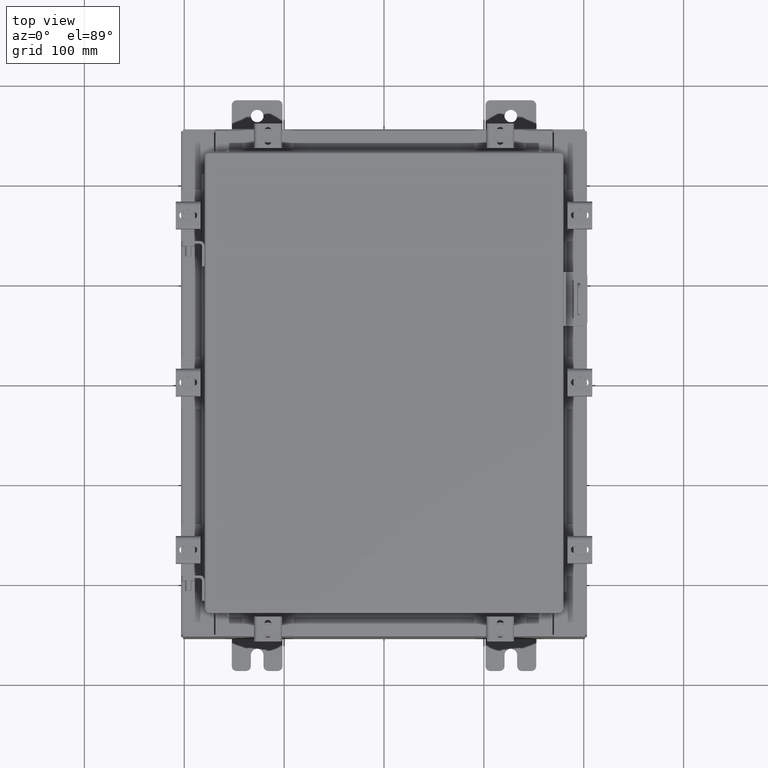
[diagram: clean part render]
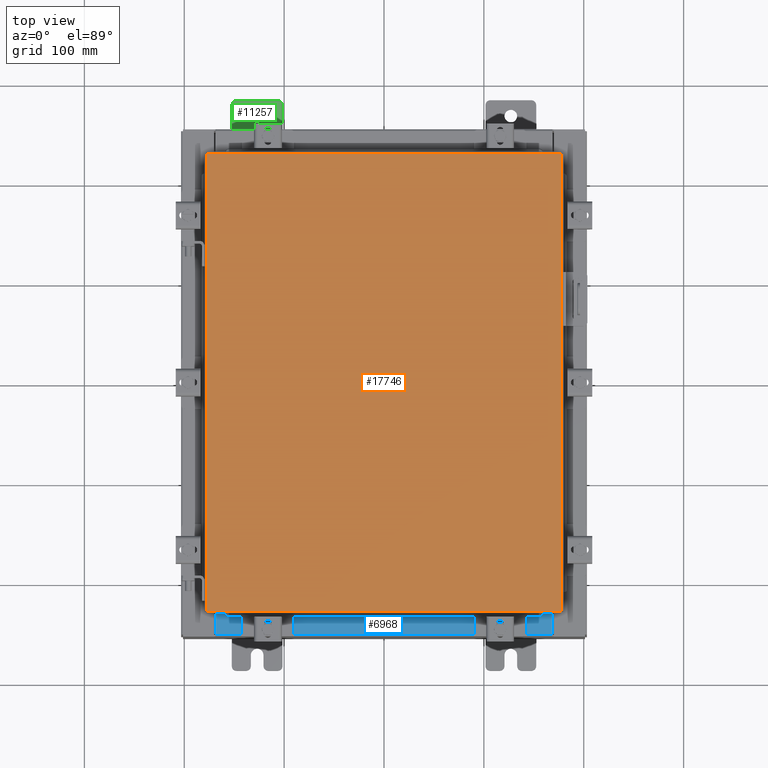
[diagram: same view with three faces highlighted in distinct colors, each labeled with its STEP entity id]
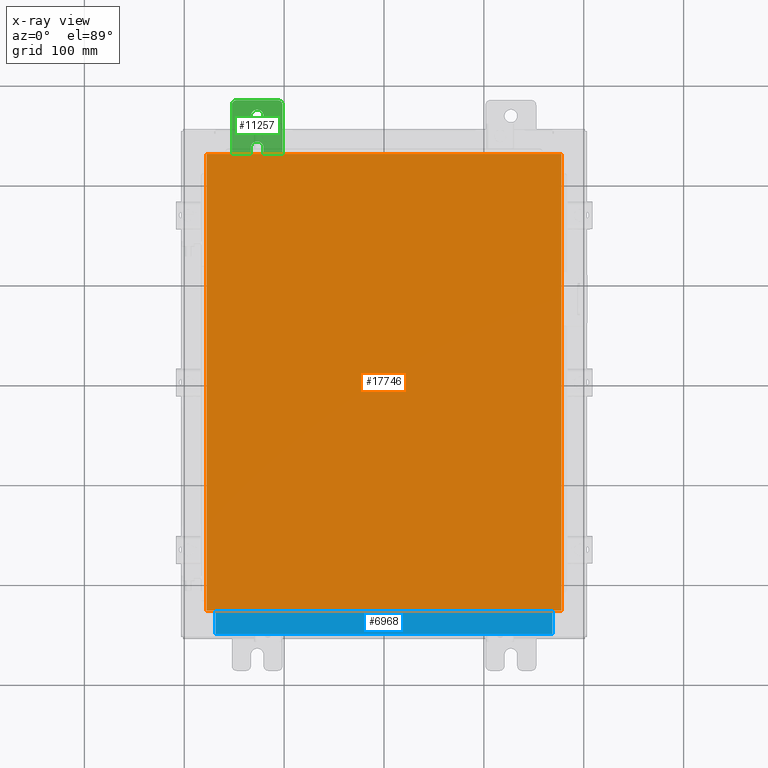
[diagram: x-ray of the same camera — body ghosted, the three highlighted faces saturated]
A machine part, top view with three faces highlighted in distinct colors.
The next image is the same camera in x-ray (body ghosted, the three faces saturated) — at least one of them is partly hidden behind the body in this view.
Their STEP definitions:

[orange] entity #17746 — the highlighted planar face has unit normal (0, 0, -1).
#1412 = VERTEX_POINT ( 'NONE', #11173 ) ;
#1585 = VECTOR ( 'NONE', #20929, 39.37007874015748100 ) ;
#1667 = CARTESIAN_POINT ( 'NONE',  ( -6.990300000000003100, 9.006299999999996000, 0.0000000000000000000 ) ) ;
#3045 = ORIENTED_EDGE ( 'NONE', *, *, #18996, .T. ) ;
#3326 = VERTEX_POINT ( 'NONE', #6236 ) ;
#4128 = EDGE_LOOP ( 'NONE', ( #14569, #5170, #13429, #3045 ) ) ;
#5085 = EDGE_CURVE ( 'NONE', #1412, #3326, #8689, .T. ) ;
#5170 = ORIENTED_EDGE ( 'NONE', *, *, #5085, .T. ) ;
#5464 = VECTOR ( 'NONE', #7972, 39.37007874015748100 ) ;
#6236 = CARTESIAN_POINT ( 'NONE',  ( 6.990299999999996800, 9.006299999999996000, 0.0000000000000000000 ) ) ;
#6241 = CARTESIAN_POINT ( 'NONE',  ( 6.990299999999996800, -9.006300000000003100, 0.0000000000000000000 ) ) ;
#6656 = CARTESIAN_POINT ( 'NONE',  ( -6.990300000000003100, 9.006299999999996000, 0.0000000000000000000 ) ) ;
#6807 = CARTESIAN_POINT ( 'NONE',  ( 0.0000000000000000000, 0.0000000000000000000, 0.0000000000000000000 ) ) ;
#6891 = DIRECTION ( 'NONE',  ( -1.000000000000000000, 0.0000000000000000000, -0.0000000000000000000 ) ) ;
#7091 = CARTESIAN_POINT ( 'NONE',  ( 6.990299999999996800, 9.006299999999996000, 0.0000000000000000000 ) ) ;
#7972 = DIRECTION ( 'NONE',  ( 1.000000000000000000, -0.0000000000000000000, -0.0000000000000000000 ) ) ;
#8027 = VECTOR ( 'NONE', #18398, 39.37007874015748100 ) ;
#8270 = VERTEX_POINT ( 'NONE', #1667 ) ;
#8689 = LINE ( 'NONE', #6241, #8027 ) ;
#9194 = EDGE_CURVE ( 'NONE', #3326, #8270, #10850, .T. ) ;
#9540 = LINE ( 'NONE', #20126, #5464 ) ;
#10850 = LINE ( 'NONE', #7091, #1585 ) ;
#11173 = CARTESIAN_POINT ( 'NONE',  ( 6.990299999999996800, -9.006300000000003100, 0.0000000000000000000 ) ) ;
#11412 = AXIS2_PLACEMENT_3D ( 'NONE', #6807, #17293, #6891 ) ;
#12046 = VERTEX_POINT ( 'NONE', #15351 ) ;
#13429 = ORIENTED_EDGE ( 'NONE', *, *, #9194, .T. ) ;
#13880 = FACE_OUTER_BOUND ( 'NONE', #4128, .T. ) ;
#14569 = ORIENTED_EDGE ( 'NONE', *, *, #17479, .T. ) ;
#15351 = CARTESIAN_POINT ( 'NONE',  ( -6.990300000000003100, -9.006300000000003100, 0.0000000000000000000 ) ) ;
#15557 = PLANE ( 'NONE',  #11412 ) ;
#16265 = VECTOR ( 'NONE', #17051, 39.37007874015748100 ) ;
#17051 = DIRECTION ( 'NONE',  ( 0.0000000000000000000, -1.000000000000000000, 0.0000000000000000000 ) ) ;
#17293 = DIRECTION ( 'NONE',  ( 0.0000000000000000000, 0.0000000000000000000, -1.000000000000000000 ) ) ;
#17479 = EDGE_CURVE ( 'NONE', #12046, #1412, #9540, .T. ) ;
#17746 = ADVANCED_FACE ( 'NONE', ( #13880 ), #15557, .F. ) ;
#18398 = DIRECTION ( 'NONE',  ( 0.0000000000000000000, 1.000000000000000000, 0.0000000000000000000 ) ) ;
#18996 = EDGE_CURVE ( 'NONE', #8270, #12046, #21461, .T. ) ;
#20126 = CARTESIAN_POINT ( 'NONE',  ( -6.990300000000003100, -9.006300000000003100, 0.0000000000000000000 ) ) ;
#20929 = DIRECTION ( 'NONE',  ( -1.000000000000000000, -0.0000000000000000000, -0.0000000000000000000 ) ) ;
#21461 = LINE ( 'NONE', #6656, #16265 ) ;

[blue] entity #6968 — the highlighted planar face has unit normal (-0, -0, 1).
#663 = VERTEX_POINT ( 'NONE', #18317 ) ;
#906 = ORIENTED_EDGE ( 'NONE', *, *, #8555, .F. ) ;
#972 = AXIS2_PLACEMENT_3D ( 'NONE', #22000, #4977, #17125 ) ;
#2000 = EDGE_LOOP ( 'NONE', ( #906, #4670, #17474, #18086 ) ) ;
#2593 = CARTESIAN_POINT ( 'NONE',  ( 8.417244398551363700E-015, -0.08770000000000026400, 2.999999999999999600 ) ) ;
#4357 = VECTOR ( 'NONE', #21111, 39.37007874015748100 ) ;
#4670 = ORIENTED_EDGE ( 'NONE', *, *, #13859, .F. ) ;
#4854 = DIRECTION ( 'NONE',  ( -1.000000000000000000, -9.139958547304985100E-016, -2.831068712794149200E-015 ) ) ;
#4977 = DIRECTION ( 'NONE',  ( 2.831068712794150400E-015, 4.136762393828734200E-015, 1.000000000000000000 ) ) ;
#5680 = VECTOR ( 'NONE', #13279, 39.37007874015748100 ) ;
#6128 = VECTOR ( 'NONE', #4854, 39.37007874015748100 ) ;
#6968 = ADVANCED_FACE ( 'NONE', ( #10282 ), #11600, .T. ) ;
#8018 = DIRECTION ( 'NONE',  ( -9.139958547304884500E-016, -1.000000000000000000, 4.136762393828736600E-015 ) ) ;
#8108 = LINE ( 'NONE', #18414, #8645 ) ;
#8555 = EDGE_CURVE ( 'NONE', #20716, #8792, #18218, .T. ) ;
#8645 = VECTOR ( 'NONE', #8018, 39.37007874015748100 ) ;
#8792 = VERTEX_POINT ( 'NONE', #12975 ) ;
#9951 = CARTESIAN_POINT ( 'NONE',  ( 6.637199999999984900, -1.287300000000000300, 3.000000000000009300 ) ) ;
#10282 = FACE_OUTER_BOUND ( 'NONE', #2000, .T. ) ;
#10296 = LINE ( 'NONE', #2593, #5680 ) ;
#11600 = PLANE ( 'NONE',  #972 ) ;
#12975 = CARTESIAN_POINT ( 'NONE',  ( -6.637200000000016000, -0.08770000000000026400, 2.999999999999968000 ) ) ;
#13279 = DIRECTION ( 'NONE',  ( -1.000000000000000000, -9.139958547304985100E-016, -2.831068712794149200E-015 ) ) ;
#13859 = EDGE_CURVE ( 'NONE', #663, #20716, #15357, .T. ) ;
#15357 = LINE ( 'NONE', #9951, #6128 ) ;
#15787 = CARTESIAN_POINT ( 'NONE',  ( 6.637199999999982200, -0.08770000000000026400, 3.000000000000005300 ) ) ;
#17125 = DIRECTION ( 'NONE',  ( -9.139958547304882500E-016, -1.000000000000000000, 4.136762393828736600E-015 ) ) ;
#17182 = VERTEX_POINT ( 'NONE', #15787 ) ;
#17474 = ORIENTED_EDGE ( 'NONE', *, *, #19470, .F. ) ;
#18086 = ORIENTED_EDGE ( 'NONE', *, *, #18852, .T. ) ;
#18218 = LINE ( 'NONE', #19360, #4357 ) ;
#18317 = CARTESIAN_POINT ( 'NONE',  ( 6.637199999999983100, -1.287300000000000300, 3.000000000000009300 ) ) ;
#18414 = CARTESIAN_POINT ( 'NONE',  ( 6.637199999999983100, -1.300300000000000200, 3.000000000000009300 ) ) ;
#18852 = EDGE_CURVE ( 'NONE', #17182, #8792, #10296, .T. ) ;
#19360 = CARTESIAN_POINT ( 'NONE',  ( -6.637200000000016000, -0.07470000000000015500, 2.999999999999968000 ) ) ;
#19470 = EDGE_CURVE ( 'NONE', #17182, #663, #8108, .T. ) ;
#20716 = VERTEX_POINT ( 'NONE', #21729 ) ;
#21111 = DIRECTION ( 'NONE',  ( 9.139958547304884500E-016, 1.000000000000000000, -4.136762393828736600E-015 ) ) ;
#21729 = CARTESIAN_POINT ( 'NONE',  ( -6.637200000000016000, -1.287299999999999200, 2.999999999999999600 ) ) ;
#22000 = CARTESIAN_POINT ( 'NONE',  ( 8.507329792069235200E-015, 1.092739197465705300E-014, 2.999999999999999600 ) ) ;

[green] entity #11257 — the highlighted planar face has unit normal (0, 0, 1).
#63 = CARTESIAN_POINT ( 'NONE',  ( 0.0000000000000000000, -1.060000000000002300, 0.4400000000000018900 ) ) ;
#214 = AXIS2_PLACEMENT_3D ( 'NONE', #18797, #8378, #20538 ) ;
#268 = VECTOR ( 'NONE', #8597, 39.37007874015748100 ) ;
#526 = AXIS2_PLACEMENT_3D ( 'NONE', #21767, #2699, #14839 ) ;
#708 = FACE_BOUND ( 'NONE', #18854, .T. ) ;
#748 = DIRECTION ( 'NONE',  ( 1.000000000000000000, 0.0000000000000000000, -5.163192708025532000E-017 ) ) ;
#1002 = DIRECTION ( 'NONE',  ( 0.0000000000000000000, -1.639108796198553600E-015, -1.000000000000000000 ) ) ;
#1016 = DIRECTION ( 'NONE',  ( -6.556435184794182400E-016, -1.000000000000000000, -1.639108796198545600E-016 ) ) ;
#1285 = VERTEX_POINT ( 'NONE', #15972 ) ;
#1297 = CARTESIAN_POINT ( 'NONE',  ( 0.0000000000000000000, -0.6249999999999988900, 0.2500000000000008900 ) ) ;
#1505 = AXIS2_PLACEMENT_3D ( 'NONE', #14157, #3753, #15888 ) ;
#1720 = CARTESIAN_POINT ( 'NONE',  ( 0.0000000000000000000, 1.249999999999997800, 0.8099999999999938400 ) ) ;
#1811 = DIRECTION ( 'NONE',  ( 0.0000000000000000000, 0.0000000000000000000, -1.000000000000000000 ) ) ;
#2213 = ORIENTED_EDGE ( 'NONE', *, *, #10876, .T. ) ;
#2490 = VERTEX_POINT ( 'NONE', #15900 ) ;
#2501 = VERTEX_POINT ( 'NONE', #4888 ) ;
#2527 = EDGE_CURVE ( 'NONE', #12585, #20173, #4653, .T. ) ;
#2546 = ORIENTED_EDGE ( 'NONE', *, *, #8111, .T. ) ;
#2583 = VERTEX_POINT ( 'NONE', #17509 ) ;
#2597 = LINE ( 'NONE', #10059, #21640 ) ;
#2616 = PLANE ( 'NONE',  #526 ) ;
#2699 = DIRECTION ( 'NONE',  ( 1.000000000000000000, 0.0000000000000000000, 0.0000000000000000000 ) ) ;
#2707 = CARTESIAN_POINT ( 'NONE',  ( 0.0000000000000000000, 1.249999999999993600, -0.8100000000000091600 ) ) ;
#3251 = CARTESIAN_POINT ( 'NONE',  ( 0.0000000000000000000, -1.060000000000004500, -1.000000000000006900 ) ) ;
#3753 = DIRECTION ( 'NONE',  ( 1.000000000000000000, 0.0000000000000000000, 0.0000000000000000000 ) ) ;
#3777 = CARTESIAN_POINT ( 'NONE',  ( 5.463695987328526400E-016, -0.6249999999999988900, 0.0000000000000000000 ) ) ;
#3784 = LINE ( 'NONE', #16571, #12478 ) ;
#4101 = CARTESIAN_POINT ( 'NONE',  ( 0.0000000000000000000, 1.249999999999993600, -1.000000000000010000 ) ) ;
#4114 = VECTOR ( 'NONE', #21162, 39.37007874015748100 ) ;
#4118 = CARTESIAN_POINT ( 'NONE',  ( 0.0000000000000000000, -1.250000000000002200, 0.8099999999999981700 ) ) ;
#4566 = ORIENTED_EDGE ( 'NONE', *, *, #19206, .T. ) ;
#4653 = LINE ( 'NONE', #22208, #4114 ) ;
#4812 = EDGE_CURVE ( 'NONE', #2490, #8952, #14148, .T. ) ;
#4862 = AXIS2_PLACEMENT_3D ( 'NONE', #11157, #748, #12907 ) ;
#4888 = CARTESIAN_POINT ( 'NONE',  ( 0.0000000000000000000, -1.250000000000004400, -0.8100000000000047200 ) ) ;
#4890 = LINE ( 'NONE', #11399, #11964 ) ;
#5008 = ORIENTED_EDGE ( 'NONE', *, *, #19620, .F. ) ;
#5504 = VERTEX_POINT ( 'NONE', #20025 ) ;
#5521 = DIRECTION ( 'NONE',  ( -6.523827964459551700E-016, -1.000000000000000000, 0.0000000000000000000 ) ) ;
#5925 = EDGE_CURVE ( 'NONE', #19326, #11732, #9237, .T. ) ;
#6155 = CARTESIAN_POINT ( 'NONE',  ( 0.0000000000000000000, 1.059999999999995800, 0.8099999999999938400 ) ) ;
#6186 = DIRECTION ( 'NONE',  ( 1.000000000000000000, 0.0000000000000000000, 0.0000000000000000000 ) ) ;
#6420 = FACE_OUTER_BOUND ( 'NONE', #13137, .T. ) ;
#6589 = CARTESIAN_POINT ( 'NONE',  ( 0.0000000000000000000, 1.059999999999993600, -0.8100000000000091600 ) ) ;
#6775 = EDGE_CURVE ( 'NONE', #5504, #17686, #18196, .T. ) ;
#6798 = DIRECTION ( 'NONE',  ( 1.000000000000000000, 0.0000000000000000000, 0.0000000000000000000 ) ) ;
#6914 = AXIS2_PLACEMENT_3D ( 'NONE', #3777, #15915, #5521 ) ;
#7142 = ORIENTED_EDGE ( 'NONE', *, *, #22308, .T. ) ;
#7505 = VECTOR ( 'NONE', #19756, 39.37007874015748100 ) ;
#7906 = DIRECTION ( 'NONE',  ( 0.0000000000000000000, 0.0000000000000000000, -1.000000000000000000 ) ) ;
#7927 = VERTEX_POINT ( 'NONE', #4118 ) ;
#8111 = EDGE_CURVE ( 'NONE', #7927, #2583, #4890, .T. ) ;
#8284 = ORIENTED_EDGE ( 'NONE', *, *, #20050, .T. ) ;
#8333 = DIRECTION ( 'NONE',  ( 0.0000000000000000000, 0.0000000000000000000, -1.000000000000000000 ) ) ;
#8334 = DIRECTION ( 'NONE',  ( 0.0000000000000000000, -1.639108796198553600E-015, -1.000000000000000000 ) ) ;
#8350 = CIRCLE ( 'NONE', #9678, 0.1900000000000011100 ) ;
#8367 = ORIENTED_EDGE ( 'NONE', *, *, #16112, .T. ) ;
#8378 = DIRECTION ( 'NONE',  ( 1.000000000000000000, 0.0000000000000000000, -5.163192708025532000E-017 ) ) ;
#8597 = DIRECTION ( 'NONE',  ( 0.0000000000000000000, -1.000000000000000000, 1.639108796198558100E-015 ) ) ;
#8952 = VERTEX_POINT ( 'NONE', #22133 ) ;
#9237 = CIRCLE ( 'NONE', #1505, 0.1900000000000011100 ) ;
#9550 = AXIS2_PLACEMENT_3D ( 'NONE', #17210, #6798, #18971 ) ;
#9583 = VERTEX_POINT ( 'NONE', #22112 ) ;
#9678 = AXIS2_PLACEMENT_3D ( 'NONE', #6155, #18318, #7906 ) ;
#9930 = EDGE_CURVE ( 'NONE', #19026, #1285, #16778, .T. ) ;
#10059 = CARTESIAN_POINT ( 'NONE',  ( 0.0000000000000000000, -1.250000000000002200, 0.9999999999999992200 ) ) ;
#10113 = ORIENTED_EDGE ( 'NONE', *, *, #10468, .T. ) ;
#10128 = EDGE_CURVE ( 'NONE', #15776, #2490, #8350, .T. ) ;
#10399 = ORIENTED_EDGE ( 'NONE', *, *, #2527, .T. ) ;
#10468 = EDGE_CURVE ( 'NONE', #2583, #12585, #12150, .T. ) ;
#10659 = CARTESIAN_POINT ( 'NONE',  ( 0.0000000000000000000, -1.250000000000004400, -0.4399999999999996700 ) ) ;
#10876 = EDGE_CURVE ( 'NONE', #2501, #19026, #20029, .T. ) ;
#11157 = CARTESIAN_POINT ( 'NONE',  ( 5.463695987328526400E-016, 0.6249999999999988900, 0.0000000000000000000 ) ) ;
#11257 = ADVANCED_FACE ( 'NONE', ( #708, #6420 ), #2616, .T. ) ;
#11399 = CARTESIAN_POINT ( 'NONE',  ( 0.0000000000000000000, -1.250000000000002200, 0.9999999999999992200 ) ) ;
#11732 = VERTEX_POINT ( 'NONE', #10659 ) ;
#11893 = CARTESIAN_POINT ( 'NONE',  ( 5.334616169627887800E-016, 0.6249999999999988900, -0.2499999999999999200 ) ) ;
#11964 = VECTOR ( 'NONE', #1002, 39.37007874015748100 ) ;
#12150 = CIRCLE ( 'NONE', #17402, 0.1900000000000011400 ) ;
#12222 = DIRECTION ( 'NONE',  ( 1.000000000000000000, 0.0000000000000000000, 0.0000000000000000000 ) ) ;
#12470 = DIRECTION ( 'NONE',  ( 0.0000000000000000000, 1.000000000000000000, -1.639108796198558100E-015 ) ) ;
#12478 = VECTOR ( 'NONE', #1016, 39.37007874015748100 ) ;
#12541 = ORIENTED_EDGE ( 'NONE', *, *, #6775, .F. ) ;
#12585 = VERTEX_POINT ( 'NONE', #15047 ) ;
#12907 = DIRECTION ( 'NONE',  ( -5.163192708025533800E-017, 0.0000000000000000000, -1.000000000000000000 ) ) ;
#13057 = ORIENTED_EDGE ( 'NONE', *, *, #10128, .T. ) ;
#13137 = EDGE_LOOP ( 'NONE', ( #14927, #8367, #2546, #10113, #10399, #4566, #8284, #20257, #7142, #2213, #19951, #20240, #14424, #13057 ) ) ;
#13221 = VERTEX_POINT ( 'NONE', #2707 ) ;
#14148 = LINE ( 'NONE', #20778, #268 ) ;
#14157 = CARTESIAN_POINT ( 'NONE',  ( 0.0000000000000000000, -1.060000000000004500, -0.4400000000000007800 ) ) ;
#14218 = CARTESIAN_POINT ( 'NONE',  ( 0.0000000000000000000, -1.250000000000004400, -1.000000000000006900 ) ) ;
#14424 = ORIENTED_EDGE ( 'NONE', *, *, #21962, .T. ) ;
#14839 = DIRECTION ( 'NONE',  ( 0.0000000000000000000, 0.0000000000000000000, -1.000000000000000000 ) ) ;
#14927 = ORIENTED_EDGE ( 'NONE', *, *, #4812, .T. ) ;
#15047 = CARTESIAN_POINT ( 'NONE',  ( 0.0000000000000000000, -1.060000000000002300, 0.2500000000000008900 ) ) ;
#15480 = CIRCLE ( 'NONE', #214, 0.2499999999999999200 ) ;
#15776 = VERTEX_POINT ( 'NONE', #1720 ) ;
#15888 = DIRECTION ( 'NONE',  ( 0.0000000000000000000, 0.0000000000000000000, -1.000000000000000000 ) ) ;
#15900 = CARTESIAN_POINT ( 'NONE',  ( 0.0000000000000000000, 1.059999999999998100, 0.9999999999999958900 ) ) ;
#15915 = DIRECTION ( 'NONE',  ( -1.000000000000000000, 6.523827964459549700E-016, 5.163192708025532000E-017 ) ) ;
#15972 = CARTESIAN_POINT ( 'NONE',  ( 0.0000000000000000000, 1.059999999999993600, -1.000000000000010000 ) ) ;
#16057 = CIRCLE ( 'NONE', #21169, 0.1900000000000011100 ) ;
#16112 = EDGE_CURVE ( 'NONE', #8952, #7927, #21573, .T. ) ;
#16571 = CARTESIAN_POINT ( 'NONE',  ( 5.463695987328526400E-016, -0.6249999999999988900, -0.2499999999999998100 ) ) ;
#16582 = CARTESIAN_POINT ( 'NONE',  ( 0.0000000000000000000, -1.060000000000002300, 0.8099999999999981700 ) ) ;
#16730 = LINE ( 'NONE', #4101, #7505 ) ;
#16778 = LINE ( 'NONE', #14218, #20880 ) ;
#17072 = CIRCLE ( 'NONE', #6914, 0.2499999999999999200 ) ;
#17210 = CARTESIAN_POINT ( 'NONE',  ( 0.0000000000000000000, -1.060000000000004500, -0.8100000000000047200 ) ) ;
#17402 = AXIS2_PLACEMENT_3D ( 'NONE', #63, #12222, #1811 ) ;
#17509 = CARTESIAN_POINT ( 'NONE',  ( 0.0000000000000000000, -1.250000000000002200, 0.4400000000000018900 ) ) ;
#17639 = EDGE_CURVE ( 'NONE', #1285, #13221, #16057, .T. ) ;
#17686 = VERTEX_POINT ( 'NONE', #11893 ) ;
#18196 = CIRCLE ( 'NONE', #4862, 0.2499999999999999200 ) ;
#18318 = DIRECTION ( 'NONE',  ( 1.000000000000000000, 0.0000000000000000000, 0.0000000000000000000 ) ) ;
#18346 = DIRECTION ( 'NONE',  ( 0.0000000000000000000, 0.0000000000000000000, -1.000000000000000000 ) ) ;
#18672 = AXIS2_PLACEMENT_3D ( 'NONE', #16582, #6186, #18346 ) ;
#18751 = DIRECTION ( 'NONE',  ( 1.000000000000000000, 0.0000000000000000000, 0.0000000000000000000 ) ) ;
#18797 = CARTESIAN_POINT ( 'NONE',  ( 5.463695987328526400E-016, 0.6249999999999988900, 0.0000000000000000000 ) ) ;
#18854 = EDGE_LOOP ( 'NONE', ( #5008, #12541 ) ) ;
#18971 = DIRECTION ( 'NONE',  ( 0.0000000000000000000, 0.0000000000000000000, -1.000000000000000000 ) ) ;
#19026 = VERTEX_POINT ( 'NONE', #3251 ) ;
#19206 = EDGE_CURVE ( 'NONE', #20173, #9583, #17072, .T. ) ;
#19326 = VERTEX_POINT ( 'NONE', #19572 ) ;
#19572 = CARTESIAN_POINT ( 'NONE',  ( 0.0000000000000000000, -1.060000000000004500, -0.2499999999999998100 ) ) ;
#19620 = EDGE_CURVE ( 'NONE', #17686, #5504, #15480, .T. ) ;
#19756 = DIRECTION ( 'NONE',  ( 0.0000000000000000000, 1.639108796198553600E-015, 1.000000000000000000 ) ) ;
#19951 = ORIENTED_EDGE ( 'NONE', *, *, #9930, .T. ) ;
#20025 = CARTESIAN_POINT ( 'NONE',  ( 5.592775805029164100E-016, 0.6249999999999988900, 0.2499999999999999200 ) ) ;
#20029 = CIRCLE ( 'NONE', #9550, 0.1900000000000011100 ) ;
#20050 = EDGE_CURVE ( 'NONE', #9583, #19326, #3784, .T. ) ;
#20173 = VERTEX_POINT ( 'NONE', #1297 ) ;
#20240 = ORIENTED_EDGE ( 'NONE', *, *, #17639, .T. ) ;
#20257 = ORIENTED_EDGE ( 'NONE', *, *, #5925, .T. ) ;
#20538 = DIRECTION ( 'NONE',  ( -5.163192708025533800E-017, 0.0000000000000000000, -1.000000000000000000 ) ) ;
#20778 = CARTESIAN_POINT ( 'NONE',  ( 0.0000000000000000000, 1.249999999999997800, 0.9999999999999947800 ) ) ;
#20880 = VECTOR ( 'NONE', #12470, 39.37007874015748100 ) ;
#21162 = DIRECTION ( 'NONE',  ( 6.556435184794182400E-016, 1.000000000000000000, 0.0000000000000000000 ) ) ;
#21169 = AXIS2_PLACEMENT_3D ( 'NONE', #6589, #18751, #8333 ) ;
#21573 = CIRCLE ( 'NONE', #18672, 0.1900000000000011100 ) ;
#21640 = VECTOR ( 'NONE', #8334, 39.37007874015748100 ) ;
#21767 = CARTESIAN_POINT ( 'NONE',  ( 0.0000000000000000000, 0.0000000000000000000, 0.0000000000000000000 ) ) ;
#21962 = EDGE_CURVE ( 'NONE', #13221, #15776, #16730, .T. ) ;
#22112 = CARTESIAN_POINT ( 'NONE',  ( 5.463695987328526400E-016, -0.6249999999999988900, -0.2499999999999998100 ) ) ;
#22133 = CARTESIAN_POINT ( 'NONE',  ( 0.0000000000000000000, -1.060000000000000300, 0.9999999999999992200 ) ) ;
#22208 = CARTESIAN_POINT ( 'NONE',  ( 0.0000000000000000000, -1.250000000000004400, 0.2500000000000008900 ) ) ;
#22308 = EDGE_CURVE ( 'NONE', #11732, #2501, #2597, .T. ) ;